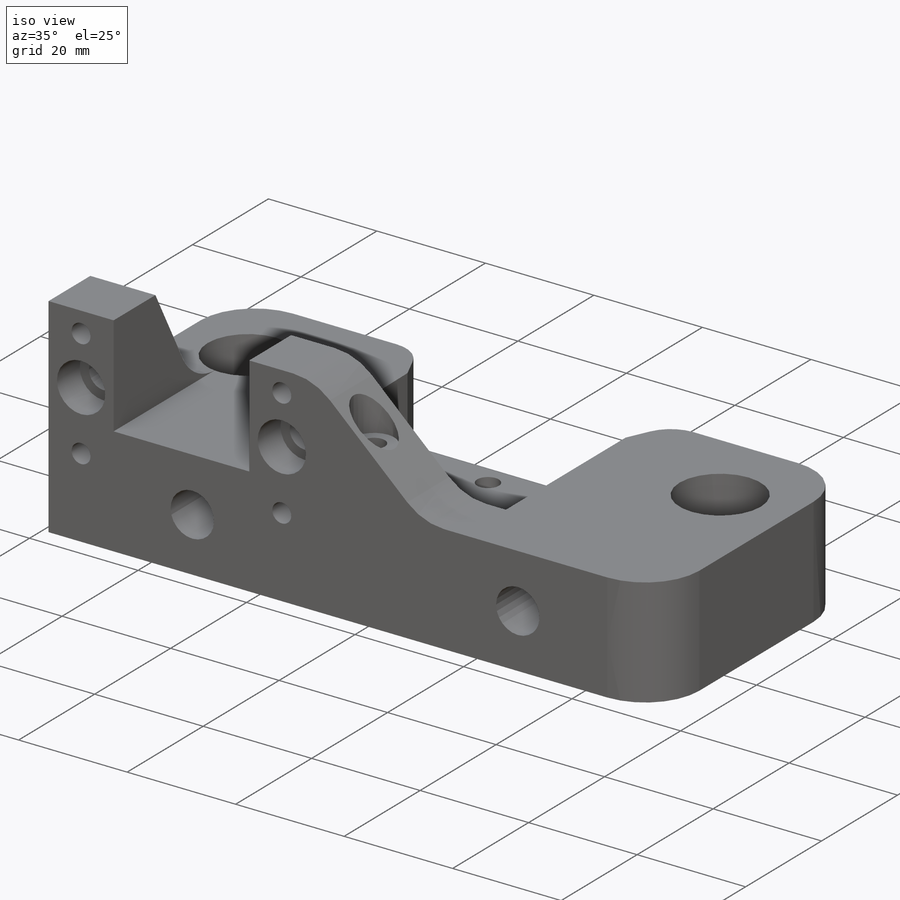
[diagram: iso view]
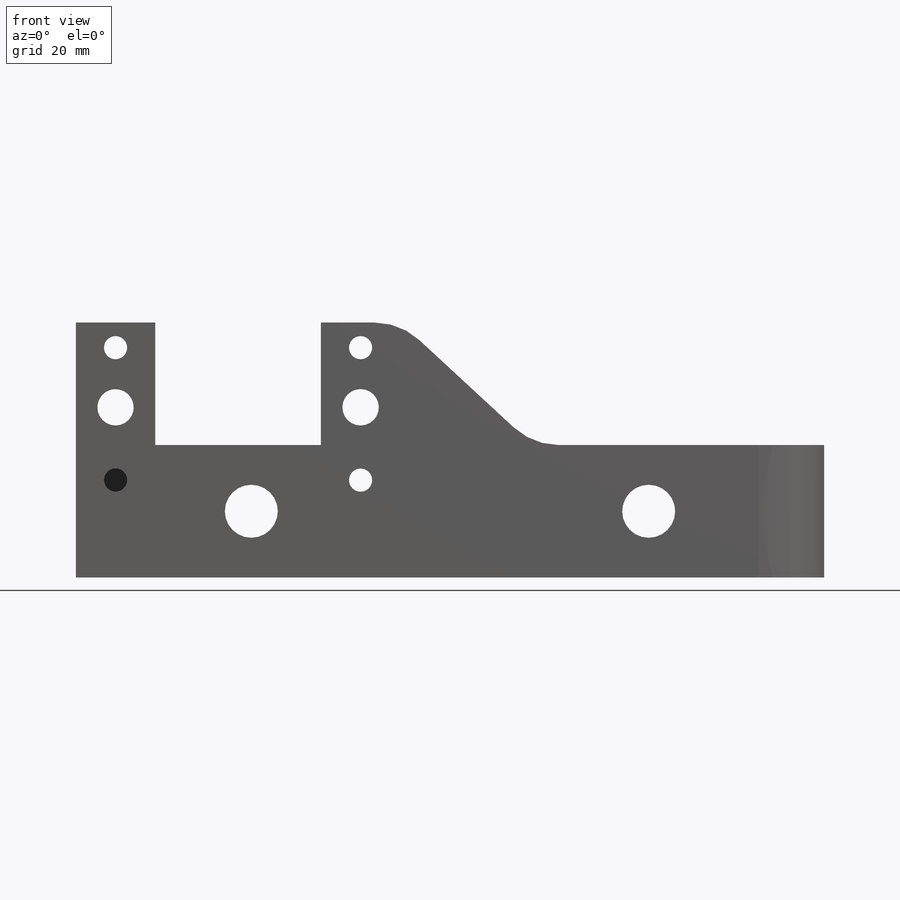
[diagram: front view]
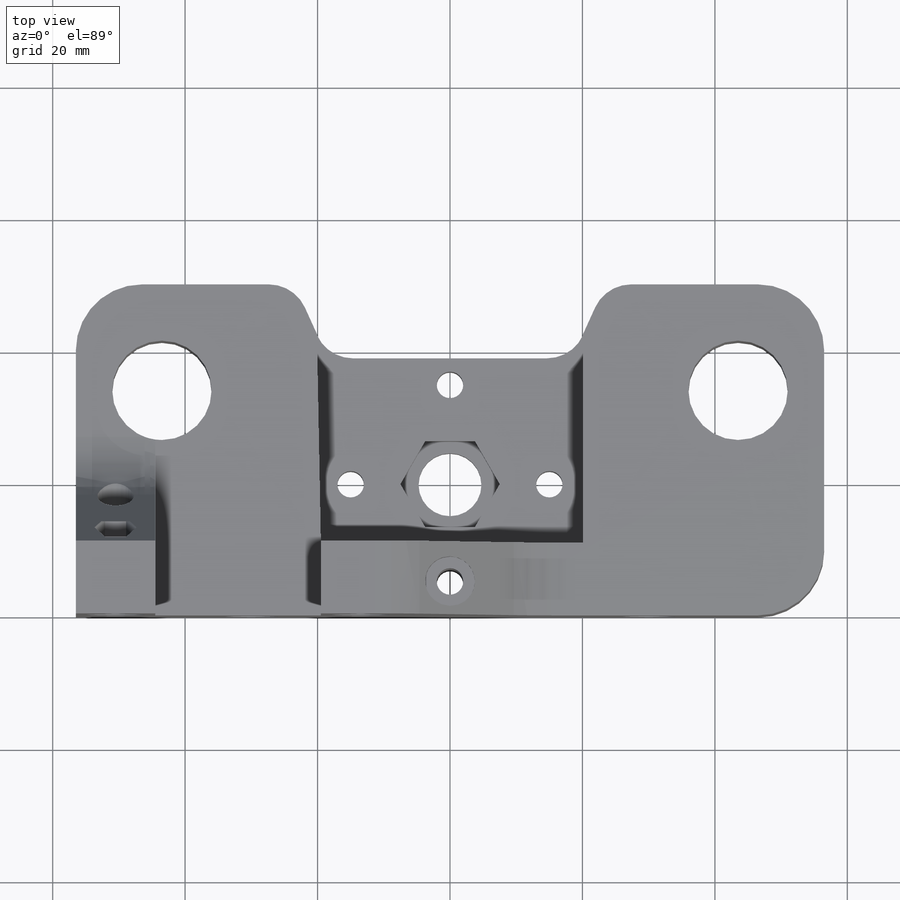
[diagram: top view]
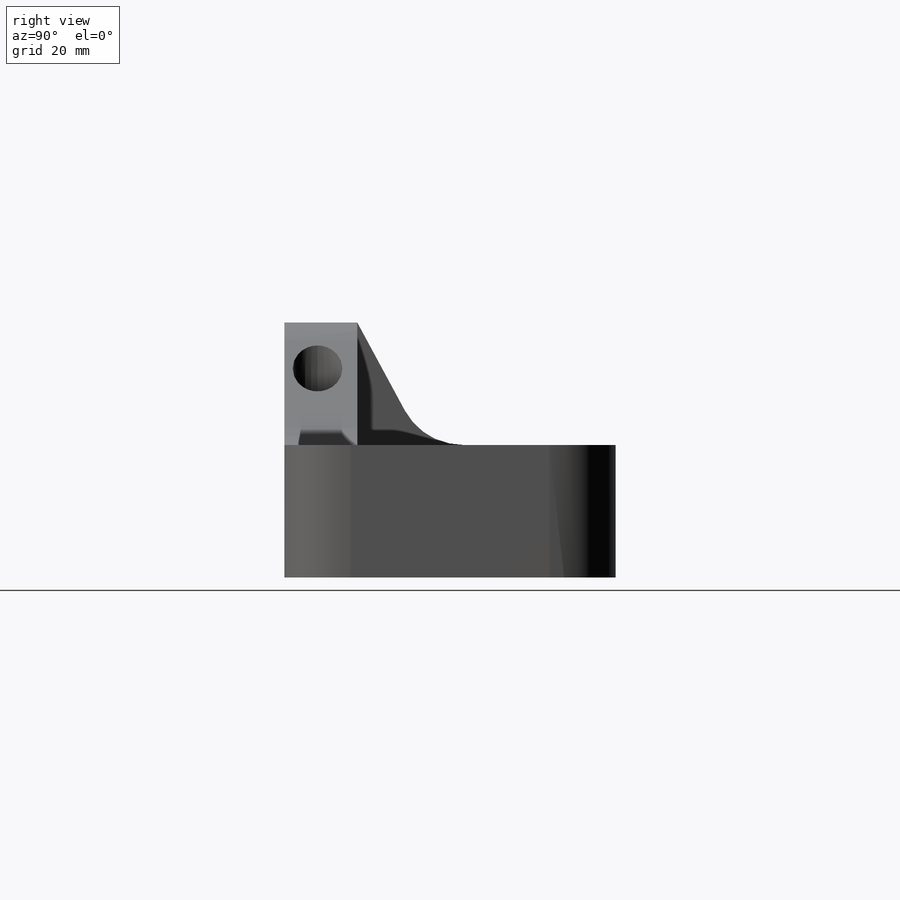
[diagram: right view]
SOLIDWORKS PART (.sldprt)
format: sldprt  version: not decoded by parser v0  size: 624,128 bytes
history: native  units: mm
features: sketch x15, cut_extrude x11, extrude x4, fillet x3, material x1 (+12 scaffold rows collapsed)
feature tree (46):
  scaffold x12  (default folders/planes/origin — collapsed)
  material  "ABS PC"
  sketch  "Sketch1"  dims[D1=113.0mm D2=50.0mm]
  extrude  "Boss-Extrude1"  Depth=20mm
  sketch  "Sketch25"  dims[c1.D1=~29.273041mm c1.D2=~36.401281mm c1.D3=37.0mm c1.D4=~39.598719mm c1.D5=28.0mm c1.D6=~29.273041mm c2.D6=~91.088294deg c3.D6=~3.517182mm c3.D7=11.0mm c3.D8=~5.462199mm c3.D9=~5.50837mm c3.D10=~31.517182mm]
  sketch  "Sketch13"  dims[c1.D1=~17.010873mm c1.D2=~11.250663mm c2.D1=12.0mm c2.D2=11.0mm c2.D3=15.0mm c2.D4=~9.637445mm c3.D3=25.0mm c3.D4=1.0mm]
  extrude  "Boss-Extrude2"  Depth=18.5mm
  sketch  "Sketch18"  dims[D1=20.0mm]
  extrude  "Boss-Extrude4"  [1 undecoded]
  sketch  "Sketch2"  dims[c1.D2=~14.056043mm c1.D3=~14.056043mm c1.D5=15.0mm c1.D6=15.0mm c1.D1=15.0mm c2.D2=15.0mm c2.D4=~5.495424mm c2.D7=~5.495424mm c2.D8=9.5mm c2.D1=15.0mm c3.D2=9.5mm c3.D3=9.5mm c3.D9=9.5mm c3.D10=~5.217635mm c3.D11=4.0mm c3.D12=~5.687288mm c3.D13=~3.721909mm c3.D1=15.0mm c4.D2=45.0mm c4.D3=14.0mm c4.D4=45.0mm c4.D1=45.0mm c5.D2=45.0mm c5.D3=7.5mm c5.D4=43.5mm c5.D7=14.0mm c5.D1=43.5mm c6.D2=56.5mm c6.D3=30.0mm c6.D9=15.0mm c6.D10=15.0mm c6.D12=15.0mm c6.D13=15.0mm]
  cut_extrude  "Cut-Extrude1"  [1 undecoded]
  sketch  "Sketch3"  dims[c1.D3=~12.990381mm c1.D1=15.0mm c1.D2=40.0mm c2.D3=65.0mm]
  sketch  "Sketch20"  dims[D1=7.5mm]
  cut_extrude  "Cut-Extrude11"  Depth=15mm
  sketch  "Sketch5"  dims[c1.D1=8.0mm c1.D2=8.0mm c1.D3=8.0mm c1.D4=8.0mm c2.D2=8.0mm c2.D3=8.0mm c2.D4=8.0mm c3.D2=37.5mm c3.D3=37.5mm c3.D4=10.0mm c4.D2=60.0mm c4.D3=26.5mm c4.D4=10.0mm]
  cut_extrude  "Cut-Extrude4"  [1 undecoded]
  sketch  "Sketch12"  dims[D1=25.0mm D2=11.0mm D3=33.0mm D4=33.0mm D5=5.0mm D6=5.0mm D7=25.5mm]
  cut_extrude  "Cut-Extrude6"  [1 undecoded]
  fillet  "Fillet11"  Radius=10mm
  fillet  "Fillet5"  Radius=6mm
  sketch  "Sketch14"  dims[c1.D1=~8.76972mm c1.D2=8.9mm c1.D4=12.0mm c2.D1=12.0mm c2.D3=6.0mm c2.D4=5.0mm c2.D5=~10.631734mm c3.D1=5.7mm c3.D4=6.0mm]
  cut_extrude  "Cut-Extrude7"  Depth=6mm
  sketch  "Sketch17"  dims[D1=10.0mm]
  extrude  "Boss-Extrude3"  Depth=12mm
  sketch  "Sketch15"  dims[D1=5.5mm D2=3.0mm]
  cut_extrude  "Cut-Extrude8"  [1 undecoded]
  sketch  "Sketch16"  dims[c1.D1=~3.415389mm c1.D4=3.5mm c1.D3=3.0mm c2.D1=6.0mm c2.D2=6.0mm c2.D3=3.0mm c2.D5=20.0mm c3.D2=6.0mm c3.D3=9.0mm]
  cut_extrude  "Cut-Extrude9"  Depth=16mm
  sketch  "Sketch21"  dims[D1=5.5mm D2=5.5mm]
  cut_extrude  "Cut-Extrude12"  Depth=3mm
  sketch  "Sketch22"  dims[c1.D1=~5.589236mm c1.D2=~2.780783mm c2.D1=10.0mm c2.D2=3.8mm c3.D1=14.0mm c3.D2=3.0mm c3.D3=5.5mm c3.D4=11.95mm]
  cut_extrude  "Cut-Extrude13"  Depth=6.5mm
  cut_extrude  "Cut-Extrude17"  Depth=10mm
  cut_extrude  "Cut-Extrude18"  Depth=5mm
  fillet  "Fillet13"  Radius=10mm
decode coverage: 28 of 33 modeling features carry decoded parameters
note: ~ marks probable driven/reference dimensions
note: 5 parameter values undecoded
summary: no parameter record found for 5 features
note: suppression state not decoded; provenance and decode notes live in map.json
